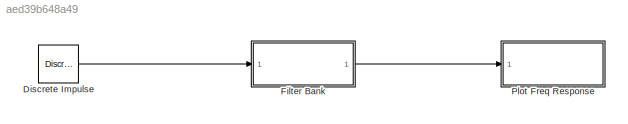
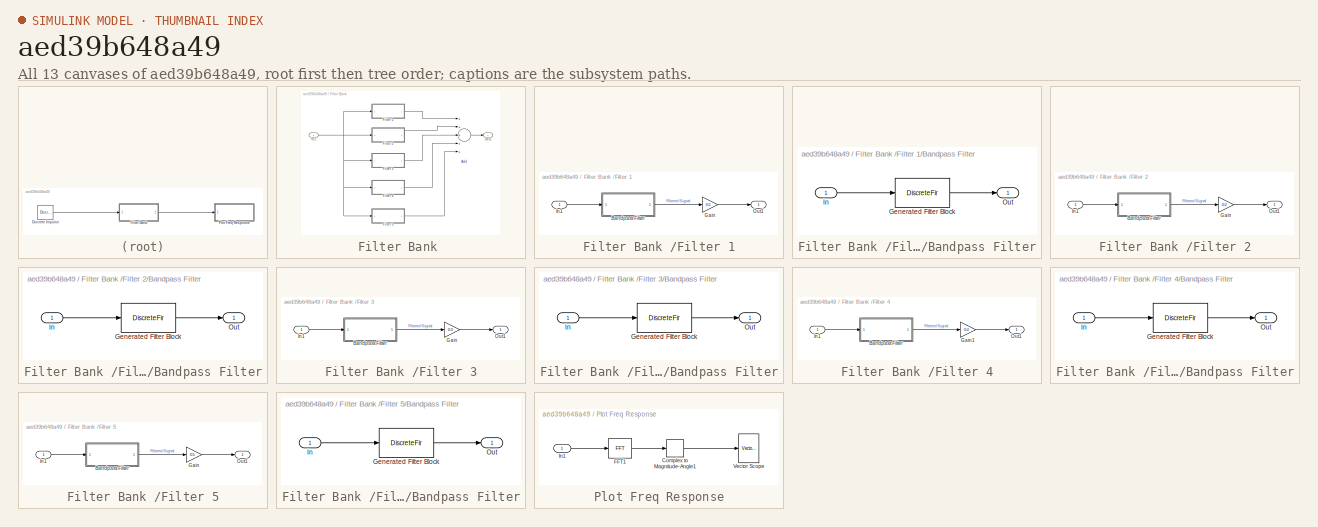
[diagram: thumbnail index - all 13 canvases of the model, root first then tree order]
MODEL slx_aed39b648a49
KIND model
CONFIG AbsTol = auto
CONFIG EnableMultiTasking = off
CONFIG FixedStep = auto
CONFIG MaxStep = auto
CONFIG MinStep = auto
CONFIG RelTol = 1e-3
CONFIG SampleTimeConstraint = Unconstrained
CONFIG Solver = VariableStepAuto
CONFIG SolverName = VariableStepAuto
CONFIG StartTime = 0.0
CONFIG StopTime = 0.001
BLOCK [Reference] Discrete Impulse  REF=dspsrcs4/Discrete 
Impulse
  Ports = [0, 1]
  SourceBlock = dspsrcs4/Discrete \nImpulse
  SourceProductBaseCode = DS
  SourceProductName = DSP System Toolbox
  SourceType = Discrete Impulse
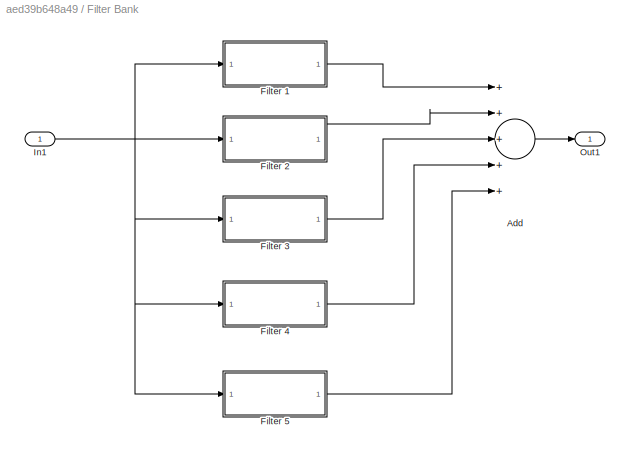
BLOCK [SubSystem] Filter Bank 
  Ports = [1, 1]
  RequestExecContextInheritance = off
BLOCK [Sum] Filter Bank /Add
  InputSameDT = off
  Inputs = +++++
  OutDataTypeStr = Inherit: Inherit via internal rule
  Ports = [5, 1]
  SaturateOnIntegerOverflow = off
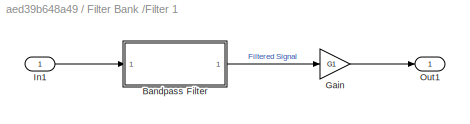
BLOCK [SubSystem] Filter Bank /Filter 1
  Ports = [1, 1]
  RequestExecContextInheritance = off
BLOCK [SubSystem] Filter Bank /Filter 1/Bandpass Filter
  CopyFcn = fdesignblkfcn(gcbh, {'CopyFcn'});
  DialogController = fdesignblkfcn
  InitFcn = fdesignblkfcn(gcbh, {'InitFcn'});
  Ports = [1, 1]
  RequestExecContextInheritance = off
  UserDataPersistent = on
BLOCK [DiscreteFir] Filter Bank /Filter 1/Bandpass Filter/Generated Filter Block
  Coefficients = [-0.00318150194721282921 -0.000406356641764479744 0.000627913274696936547 0.00229716376363712149 0.00427103914109676526 0.00606693630238063202 0.00717459348294089035 0.00722330718866860243 0.00611108102548887228 0.00407794690051849467 0.00165481504181130357 -0.000481743880948101548 -0.00174348320609398096 -0.0018017406647341948 -0.00072570510675829111 0.00101582414626484293 0.00273555589458507201 ...<+3383ch>
  InputPortMap = u0
  InputProcessing = Columns as channels (frame based)
  OutputPortMap = o0
  Ports = [1, 1]
  Tag = BlockMethodSubSystem
BLOCK [Inport] Filter Bank /Filter 1/Bandpass Filter/In
  IconDisplay = Port number
BLOCK [Outport] Filter Bank /Filter 1/Bandpass Filter/Out
  IconDisplay = Port number
BLOCK [Gain] Filter Bank /Filter 1/Gain
  Gain = G1
  OutDataTypeStr = Inherit: Inherit via internal rule
  ParamDataTypeStr = Inherit: Inherit via internal rule
  SaturateOnIntegerOverflow = off
BLOCK [Inport] Filter Bank /Filter 1/In1
  IconDisplay = Port number
BLOCK [Outport] Filter Bank /Filter 1/Out1
  IconDisplay = Port number
BLOCK [SubSystem] Filter Bank /Filter 2
  Ports = [1, 1]
  RequestExecContextInheritance = off
BLOCK [SubSystem] Filter Bank /Filter 2/Bandpass Filter
  CopyFcn = fdesignblkfcn(gcbh, {'CopyFcn'});
  DialogController = fdesignblkfcn
  InitFcn = fdesignblkfcn(gcbh, {'InitFcn'});
  Ports = [1, 1]
  RequestExecContextInheritance = off
  UserDataPersistent = on
BLOCK [DiscreteFir] Filter Bank /Filter 2/Bandpass Filter/Generated Filter Block
  Coefficients = [0.00180322551968586041 -0.00116966022560369598 -4.17427644757689852e-05 0.00131671860505340314 0.00177900449823281117 6.53943859188414029e-05 -0.00336118402011753234 -0.00576340629662024789 -0.00426891844768725014 0.00102727099892733304 0.00634226752260516179 0.00723014081851164683 0.00276746456015684828 -0.00334503474731217719 -0.00618183090954741148 -0.00422346126982476189 -0.000466797135408616...<+3536ch>
  InputPortMap = u0
  InputProcessing = Columns as channels (frame based)
  OutputPortMap = o0
  Ports = [1, 1]
  Tag = BlockMethodSubSystem
BLOCK [Inport] Filter Bank /Filter 2/Bandpass Filter/In
  IconDisplay = Port number
BLOCK [Outport] Filter Bank /Filter 2/Bandpass Filter/Out
  IconDisplay = Port number
BLOCK [Gain] Filter Bank /Filter 2/Gain
  Gain = G2
  OutDataTypeStr = Inherit: Inherit via internal rule
  ParamDataTypeStr = Inherit: Inherit via internal rule
  SaturateOnIntegerOverflow = off
BLOCK [Inport] Filter Bank /Filter 2/In1
  IconDisplay = Port number
BLOCK [Outport] Filter Bank /Filter 2/Out1
  IconDisplay = Port number
BLOCK [SubSystem] Filter Bank /Filter 3
  Ports = [1, 1]
  RequestExecContextInheritance = off
BLOCK [SubSystem] Filter Bank /Filter 3/Bandpass Filter
  CopyFcn = fdesignblkfcn(gcbh, {'CopyFcn'});
  DialogController = fdesignblkfcn
  InitFcn = fdesignblkfcn(gcbh, {'InitFcn'});
  Ports = [1, 1]
  RequestExecContextInheritance = off
  UserDataPersistent = on
BLOCK [DiscreteFir] Filter Bank /Filter 3/Bandpass Filter/Generated Filter Block
  Coefficients = [0.00141817214013522405 -0.00124692953361337996 0.000318710357919457028 -0.00107631417262035777 -0.00310356153484964105 -0.000828537150682467655 0.0040385744806297804 0.00275689087480121943 -0.00471260176182189492 -0.00585353943889701384 0.00302479512662832788 0.00759331317102851077 -0.000159279339062596702 -0.00704165731174097483 -0.00229232291827901995 0.00422662550533759503 0.002395592061045915...<+3532ch>
  InputPortMap = u0
  InputProcessing = Columns as channels (frame based)
  OutputPortMap = o0
  Ports = [1, 1]
  Tag = BlockMethodSubSystem
BLOCK [Inport] Filter Bank /Filter 3/Bandpass Filter/In
  IconDisplay = Port number
BLOCK [Outport] Filter Bank /Filter 3/Bandpass Filter/Out
  IconDisplay = Port number
BLOCK [Gain] Filter Bank /Filter 3/Gain
  Gain = G3
  OutDataTypeStr = Inherit: Inherit via internal rule
  ParamDataTypeStr = Inherit: Inherit via internal rule
  SaturateOnIntegerOverflow = off
BLOCK [Inport] Filter Bank /Filter 3/In1
  IconDisplay = Port number
BLOCK [Outport] Filter Bank /Filter 3/Out1
  IconDisplay = Port number
BLOCK [SubSystem] Filter Bank /Filter 4
  Ports = [1, 1]
  RequestExecContextInheritance = off
BLOCK [SubSystem] Filter Bank /Filter 4/Bandpass Filter
  CopyFcn = fdesignblkfcn(gcbh, {'CopyFcn'});
  DialogController = fdesignblkfcn
  InitFcn = fdesignblkfcn(gcbh, {'InitFcn'});
  Ports = [1, 1]
  RequestExecContextInheritance = off
  UserDataPersistent = on
BLOCK [DiscreteFir] Filter Bank /Filter 4/Bandpass Filter/Generated Filter Block
  Coefficients = [-0.00176162035185191477 -0.000313240795502118499 -0.00157647079671175924 0.00254940318134725796 0.00133715750459451966 -0.00431144624967581651 0.00202910417533120431 0.00522333895476630779 -0.00568628774734454209 -0.00181515521379700781 0.00793881009988091878 -0.00264425026072128214 -0.00529737634863568056 0.00547010828458740616 0.00127231063885623616 -0.00333332168973006536 0.0008332175415668818...<+3488ch>
  InputPortMap = u0
  InputProcessing = Columns as channels (frame based)
  OutputPortMap = o0
  Ports = [1, 1]
  Tag = BlockMethodSubSystem
BLOCK [Inport] Filter Bank /Filter 4/Bandpass Filter/In
  IconDisplay = Port number
BLOCK [Outport] Filter Bank /Filter 4/Bandpass Filter/Out
  IconDisplay = Port number
BLOCK [Gain] Filter Bank /Filter 4/Gain1
  Gain = G4
  OutDataTypeStr = Inherit: Inherit via internal rule
  ParamDataTypeStr = Inherit: Inherit via internal rule
  SaturateOnIntegerOverflow = off
BLOCK [Inport] Filter Bank /Filter 4/In1
  IconDisplay = Port number
BLOCK [Outport] Filter Bank /Filter 4/Out1
  IconDisplay = Port number
BLOCK [SubSystem] Filter Bank /Filter 5
  Ports = [1, 1]
  RequestExecContextInheritance = off
BLOCK [SubSystem] Filter Bank /Filter 5/Bandpass Filter
  CopyFcn = fdesignblkfcn(gcbh, {'CopyFcn'});
  DialogController = fdesignblkfcn
  InitFcn = fdesignblkfcn(gcbh, {'InitFcn'});
  Ports = [1, 1]
  RequestExecContextInheritance = off
  UserDataPersistent = on
BLOCK [DiscreteFir] Filter Bank /Filter 5/Bandpass Filter/Generated Filter Block
  Coefficients = [-0.00460758363385987881 0.00316694599781721167 -0.000872879130876489349 -0.00326385431350494255 0.00693431979156414972 -0.00780359939465877315 0.00543810724170329732 -0.00183804077512523568 2.12870563570041749e-05 -0.00152373437592168148 0.00502487848325077965 -0.0073171376171771059 0.00595941029050552074 -0.00139985650527841426 -0.00332672944767140044 0.00510190641022977703 -0.003296112138825014...<+3325ch>
  InputPortMap = u0
  InputProcessing = Columns as channels (frame based)
  OutputPortMap = o0
  Ports = [1, 1]
  Tag = BlockMethodSubSystem
BLOCK [Inport] Filter Bank /Filter 5/Bandpass Filter/In
  IconDisplay = Port number
BLOCK [Outport] Filter Bank /Filter 5/Bandpass Filter/Out
  IconDisplay = Port number
BLOCK [Gain] Filter Bank /Filter 5/Gain
  Gain = G5
  OutDataTypeStr = Inherit: Inherit via internal rule
  ParamDataTypeStr = Inherit: Inherit via internal rule
  SaturateOnIntegerOverflow = off
BLOCK [Inport] Filter Bank /Filter 5/In1
  IconDisplay = Port number
BLOCK [Outport] Filter Bank /Filter 5/Out1
  IconDisplay = Port number
BLOCK [Inport] Filter Bank /In1
  IconDisplay = Port number
BLOCK [Outport] Filter Bank /Out1
  IconDisplay = Port number
BLOCK [SubSystem] Plot Freq Response
  Ports = [1]
  RequestExecContextInheritance = off
BLOCK [ComplexToMagnitudeAngle] Plot Freq Response/Complex to Magnitude-Angle1
  Output = Magnitude
  Ports = [1, 1]
BLOCK [Reference] Plot Freq Response/FFT1  REF=dspxfrm3/FFT
  Ports = [1, 1]
  SourceBlock = dspxfrm3/FFT
  SourceProductBaseCode = DS
  SourceProductName = DSP System Toolbox
  SourceType = FFT
BLOCK [Inport] Plot Freq Response/In1
  IconDisplay = Port number
BLOCK [Reference] Plot Freq Response/Vector Scope  REF=dspobslib/Vector
Scope
  Ports = [1]
  SourceBlock = dspobslib/Vector\nScope
  SourceProductBaseCode = DS
  SourceProductName = DSP System Toolbox
  SourceType = Vector Scope
LINE Discrete Impulse:1 -> Filter Bank :1
LINE Filter Bank /Add:1 -> Filter Bank /Out1:1
LINE Filter Bank /Filter 1/Bandpass Filter:1 -> Filter Bank /Filter 1/Gain:1
LINE Filter Bank /Filter 1/Gain:1 -> Filter Bank /Filter 1/Out1:1
LINE Filter Bank /Filter 1/In1:1 -> Filter Bank /Filter 1/Bandpass Filter:1
LINE Filter Bank /Filter 1:1 -> Filter Bank /Add:1
LINE Filter Bank /Filter 2/Bandpass Filter:1 -> Filter Bank /Filter 2/Gain:1
LINE Filter Bank /Filter 2/Gain:1 -> Filter Bank /Filter 2/Out1:1
LINE Filter Bank /Filter 2/In1:1 -> Filter Bank /Filter 2/Bandpass Filter:1
LINE Filter Bank /Filter 2:1 -> Filter Bank /Add:2
LINE Filter Bank /Filter 3/Bandpass Filter:1 -> Filter Bank /Filter 3/Gain:1
LINE Filter Bank /Filter 3/Gain:1 -> Filter Bank /Filter 3/Out1:1
LINE Filter Bank /Filter 3/In1:1 -> Filter Bank /Filter 3/Bandpass Filter:1
LINE Filter Bank /Filter 3:1 -> Filter Bank /Add:3
LINE Filter Bank /Filter 4/Bandpass Filter:1 -> Filter Bank /Filter 4/Gain1:1
LINE Filter Bank /Filter 4/Gain1:1 -> Filter Bank /Filter 4/Out1:1
LINE Filter Bank /Filter 4/In1:1 -> Filter Bank /Filter 4/Bandpass Filter:1
LINE Filter Bank /Filter 4:1 -> Filter Bank /Add:4
LINE Filter Bank /Filter 5/Bandpass Filter:1 -> Filter Bank /Filter 5/Gain:1
LINE Filter Bank /Filter 5/Gain:1 -> Filter Bank /Filter 5/Out1:1
LINE Filter Bank /Filter 5/In1:1 -> Filter Bank /Filter 5/Bandpass Filter:1
LINE Filter Bank /Filter 5:1 -> Filter Bank /Add:5
NET Filter Bank /In1:1 -> Filter Bank /Filter 1:1, Filter Bank /Filter 2:1, Filter Bank /Filter 3:1, Filter Bank /Filter 4:1, Filter Bank /Filter 5:1
LINE Filter Bank :1 -> Plot Freq Response:1
LINE Plot Freq Response/Complex to Magnitude-Angle1:1 -> Plot Freq Response/Vector Scope:1
LINE Plot Freq Response/FFT1:1 -> Plot Freq Response/Complex to Magnitude-Angle1:1
LINE Plot Freq Response/In1:1 -> Plot Freq Response/FFT1:1
note: NET lines group one-source signal fan-out (src -> all destinations, sorted); 1:1 wires keep LINE
